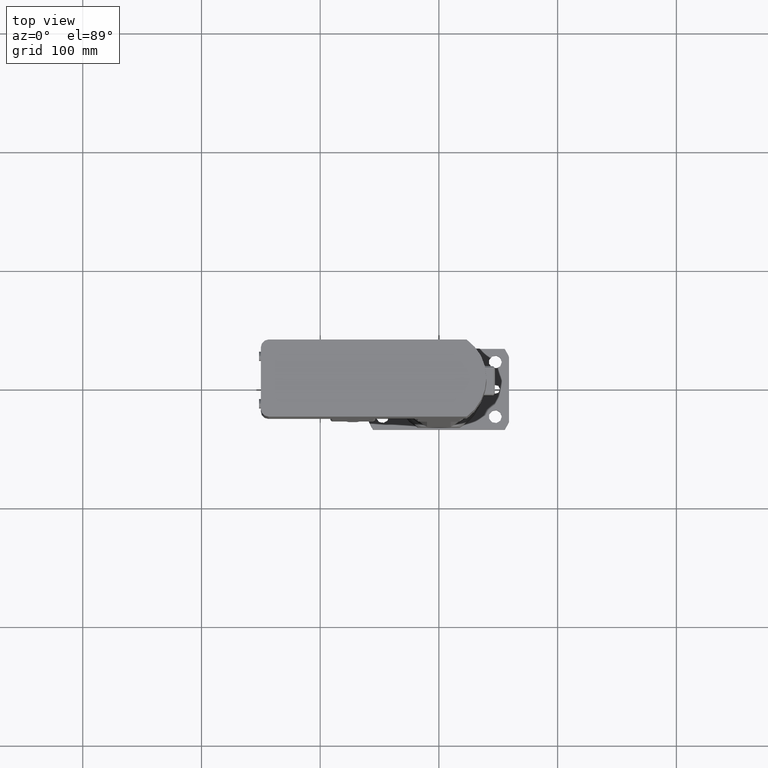
[diagram: clean part render]
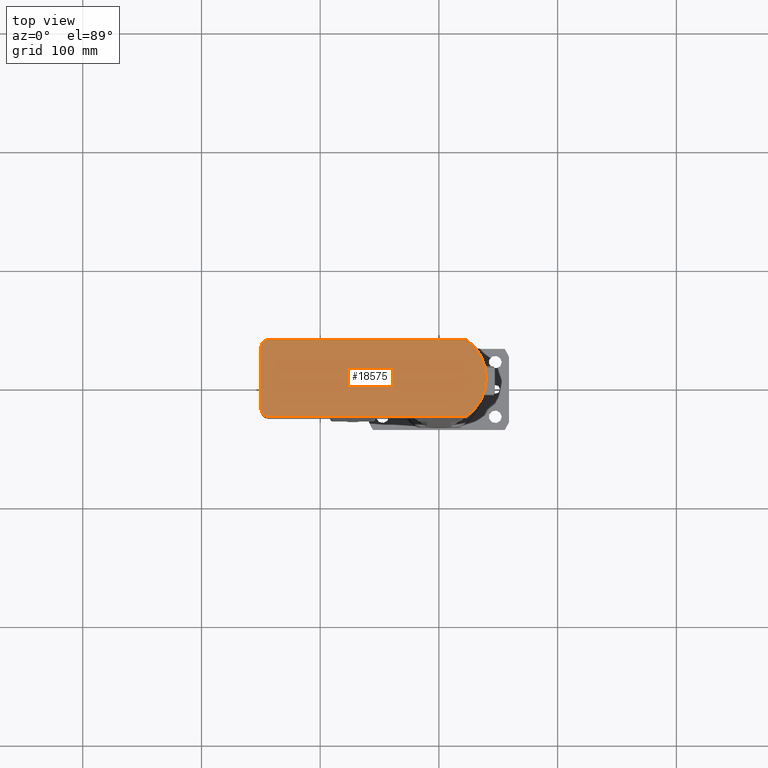
[diagram: same view with one face highlighted and labeled with its STEP entity id]
A machine part, top view. The second image highlights one B-rep face of the part: STEP entity #18575.
In plain terms, the highlighted planar face has unit normal (0, 0, 1).
Its self-contained STEP definition (entity closure, byte-faithful):
#2072=CIRCLE('',#20014,40.);
#2113=CIRCLE('',#20089,6.6);
#2114=CIRCLE('',#20090,6.6);
#3664=FACE_OUTER_BOUND('',#4907,.T.);
#4907=EDGE_LOOP('',(#14937,#14938,#14939,#14940,#14941,#14942));
#6250=LINE('',#32254,#7563);
#6257=LINE('',#32270,#7570);
#6262=LINE('',#32286,#7575);
#7563=VECTOR('',#23495,166.718447632722);
#7570=VECTOR('',#23508,51.8);
#7575=VECTOR('',#23523,166.718447632722);
#9062=VERTEX_POINT('',#32251);
#9063=VERTEX_POINT('',#32253);
#9068=VERTEX_POINT('',#32267);
#9069=VERTEX_POINT('',#32269);
#9074=VERTEX_POINT('',#32283);
#9075=VERTEX_POINT('',#32285);
#11087=EDGE_CURVE('',#9063,#9062,#6250,.T.);
#11095=EDGE_CURVE('',#9069,#9068,#6257,.T.);
#11103=EDGE_CURVE('',#9075,#9074,#6262,.T.);
#11119=EDGE_CURVE('',#9074,#9063,#2072,.T.);
#11209=EDGE_CURVE('',#9062,#9069,#2113,.T.);
#11210=EDGE_CURVE('',#9068,#9075,#2114,.T.);
#14937=ORIENTED_EDGE('',*,*,#11087,.T.);
#14938=ORIENTED_EDGE('',*,*,#11209,.T.);
#14939=ORIENTED_EDGE('',*,*,#11095,.T.);
#14940=ORIENTED_EDGE('',*,*,#11210,.T.);
#14941=ORIENTED_EDGE('',*,*,#11103,.T.);
#14942=ORIENTED_EDGE('',*,*,#11119,.T.);
#17792=PLANE('',#20088);
#18575=ADVANCED_FACE('',(#3664),#17792,.T.);
#20014=AXIS2_PLACEMENT_3D('',#32317,#23551,#23552);
#20088=AXIS2_PLACEMENT_3D('',#32588,#23735,#23736);
#20089=AXIS2_PLACEMENT_3D('',#32589,#23737,#23738);
#20090=AXIS2_PLACEMENT_3D('',#32590,#23739,#23740);
#23495=DIRECTION('',(-1.,-2.70123244266842E-16,0.));
#23508=DIRECTION('',(-4.95216776880821E-17,-1.,0.));
#23523=DIRECTION('',(1.,3.7667155158515E-16,0.));
#23551=DIRECTION('center_axis',(0.,0.,1.));
#23552=DIRECTION('ref_axis',(0.582961190818052,-0.8125,0.));
#23735=DIRECTION('center_axis',(0.,0.,1.));
#23736=DIRECTION('ref_axis',(1.,-4.95216776880823E-17,0.));
#23737=DIRECTION('center_axis',(0.,0.,1.));
#23738=DIRECTION('ref_axis',(-5.33337783564598E-15,1.,0.));
#23739=DIRECTION('center_axis',(0.,0.,1.));
#23740=DIRECTION('ref_axis',(-1.,-3.31479051814573E-15,0.));
#32251=CARTESIAN_POINT('',(-143.4,32.4999999999999,570.));
#32253=CARTESIAN_POINT('',(23.318447632722,32.5,570.));
#32254=CARTESIAN_POINT('',(23.318447632722,32.5,570.));
#32267=CARTESIAN_POINT('',(-150.,-25.9000000000001,570.));
#32269=CARTESIAN_POINT('',(-150.,25.9,570.));
#32270=CARTESIAN_POINT('',(-150.,25.9,570.));
#32283=CARTESIAN_POINT('',(23.3184476327221,-32.5,570.));
#32285=CARTESIAN_POINT('',(-143.4,-32.5000000000001,570.));
#32286=CARTESIAN_POINT('',(-143.4,-32.5000000000001,570.));
#32317=CARTESIAN_POINT('Origin',(1.77635683940025E-14,-2.46388815094089E-14,
570.));
#32588=CARTESIAN_POINT('Origin',(-61.4715955902979,-4.13671855218989E-14,
570.));
#32589=CARTESIAN_POINT('Origin',(-143.4,25.8999999999999,570.));
#32590=CARTESIAN_POINT('Origin',(-143.4,-25.9,570.));